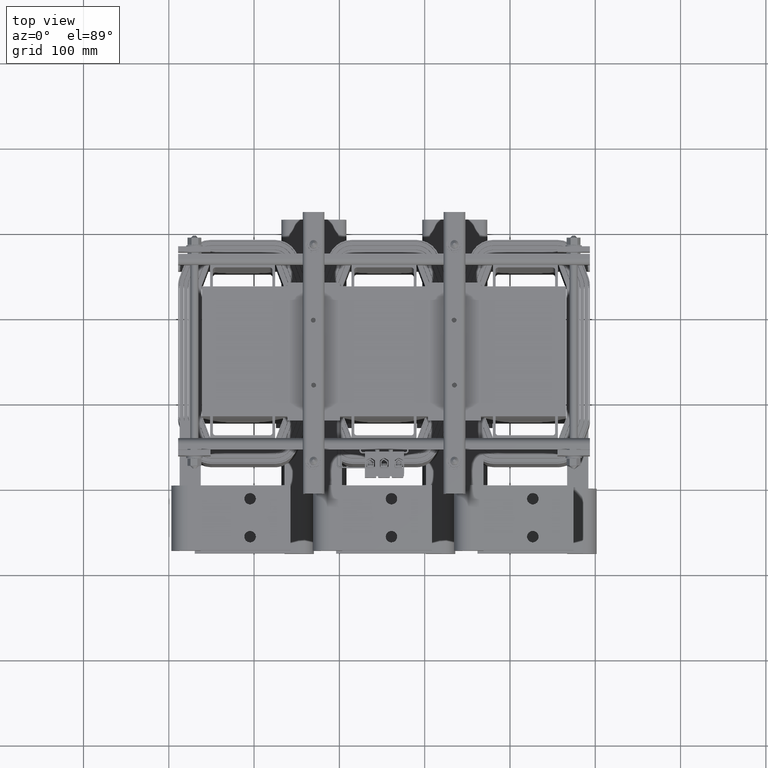
[diagram: clean part render]
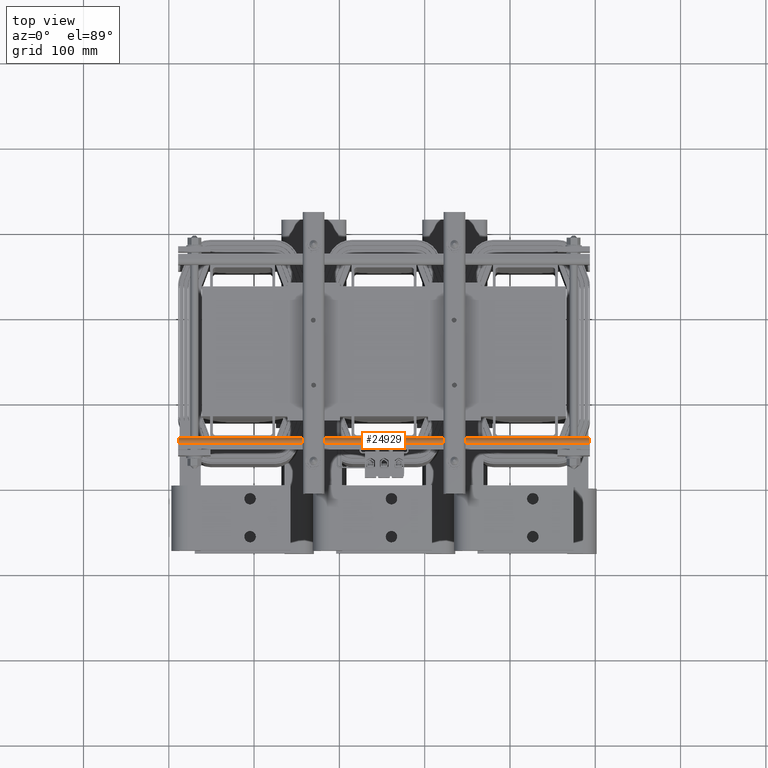
[diagram: same view with one face highlighted and labeled with its STEP entity id]
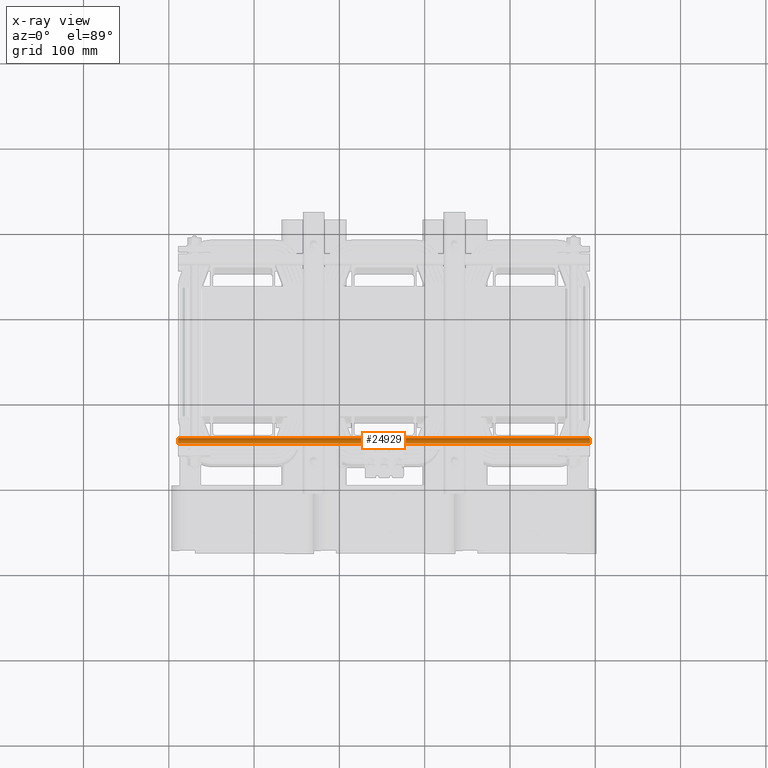
[diagram: x-ray of the same camera — body ghosted, the highlighted face saturated]
A machine part, top view. The second image highlights one B-rep face of the part: STEP entity #24929.
The next image is the same camera in x-ray: the body ghosted, the highlighted face saturated — about 0% of this face is hidden behind the body in this view.
In plain terms, the highlighted cylindrical surface (edge-blend (fillet) strip) has radius 6.858 mm, axis along (-1, -0, 0).
Its self-contained STEP definition (entity closure, byte-faithful):
#1988=CIRCLE('',#27480,0.27);
#1992=CIRCLE('',#27494,0.27);
#2331=CYLINDRICAL_SURFACE('',#27493,0.27);
#3815=FACE_OUTER_BOUND('',#5253,.T.);
#5253=EDGE_LOOP('',(#22861,#22862,#22863,#22864));
#7605=LINE('',#46027,#9958);
#7606=LINE('',#46031,#9959);
#9958=VECTOR('',#33753,0.393700787401575);
#9959=VECTOR('',#33758,0.393700787401575);
#12263=VERTEX_POINT('',#45967);
#12273=VERTEX_POINT('',#45987);
#12283=VERTEX_POINT('',#46025);
#12284=VERTEX_POINT('',#46029);
#15794=EDGE_CURVE('',#12263,#12273,#1988,.T.);
#15813=EDGE_CURVE('',#12283,#12273,#7605,.T.);
#15814=EDGE_CURVE('',#12283,#12284,#1992,.T.);
#15815=EDGE_CURVE('',#12284,#12263,#7606,.T.);
#22861=ORIENTED_EDGE('',*,*,#15814,.T.);
#22862=ORIENTED_EDGE('',*,*,#15815,.T.);
#22863=ORIENTED_EDGE('',*,*,#15794,.T.);
#22864=ORIENTED_EDGE('',*,*,#15813,.F.);
#24929=ADVANCED_FACE('',(#3815),#2331,.T.);
#27480=AXIS2_PLACEMENT_3D('',#45989,#33712,#33713);
#27493=AXIS2_PLACEMENT_3D('',#46028,#33754,#33755);
#27494=AXIS2_PLACEMENT_3D('',#46030,#33756,#33757);
#33712=DIRECTION('center_axis',(0.,0.,1.));
#33713=DIRECTION('ref_axis',(6.47549154053752E-16,1.,0.));
#33753=DIRECTION('',(0.,0.,-1.));
#33754=DIRECTION('center_axis',(0.,0.,1.));
#33755=DIRECTION('ref_axis',(6.47549154053752E-16,1.,0.));
#33756=DIRECTION('center_axis',(0.,0.,-1.));
#33757=DIRECTION('ref_axis',(6.47549154053752E-16,1.,0.));
#33758=DIRECTION('',(0.,0.,-1.));
#45967=CARTESIAN_POINT('',(-0.280726098603876,-0.821993666238562,-9.5));
#45987=CARTESIAN_POINT('',(-0.0107260986038761,-0.551993666238562,-9.5));
#45989=CARTESIAN_POINT('Origin',(-0.280726098603876,-0.551993666238562,
-9.5));
#46025=CARTESIAN_POINT('',(-0.0107260986038761,-0.551993666238562,9.5));
#46027=CARTESIAN_POINT('',(-0.0107260986038761,-0.551993666238562,0.));
#46028=CARTESIAN_POINT('Origin',(-0.280726098603876,-0.551993666238562,
0.));
#46029=CARTESIAN_POINT('',(-0.280726098603876,-0.821993666238562,9.5));
#46030=CARTESIAN_POINT('Origin',(-0.280726098603876,-0.551993666238562,
9.5));
#46031=CARTESIAN_POINT('',(-0.280726098603876,-0.821993666238562,0.));